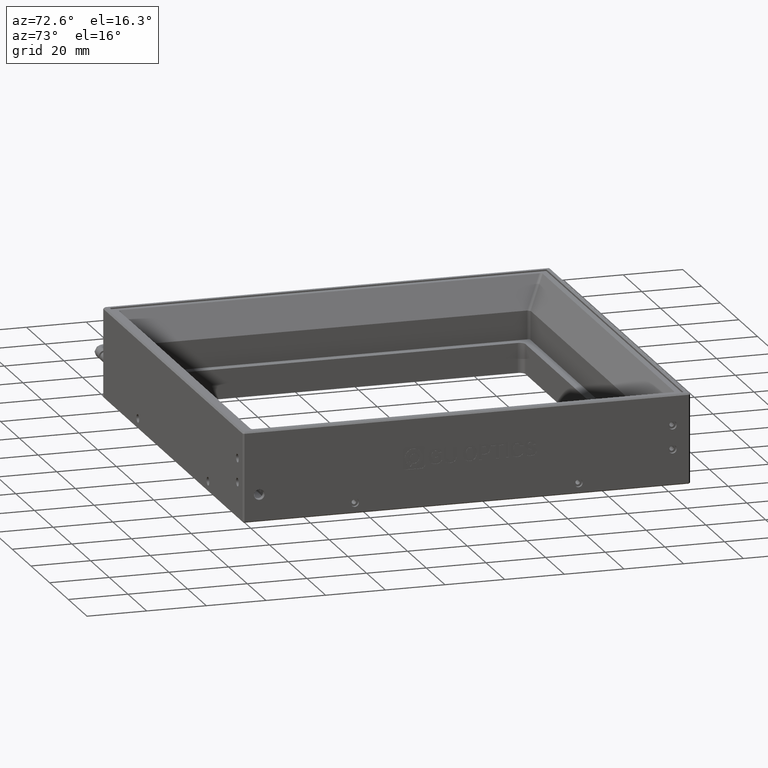
[diagram: clean part render]
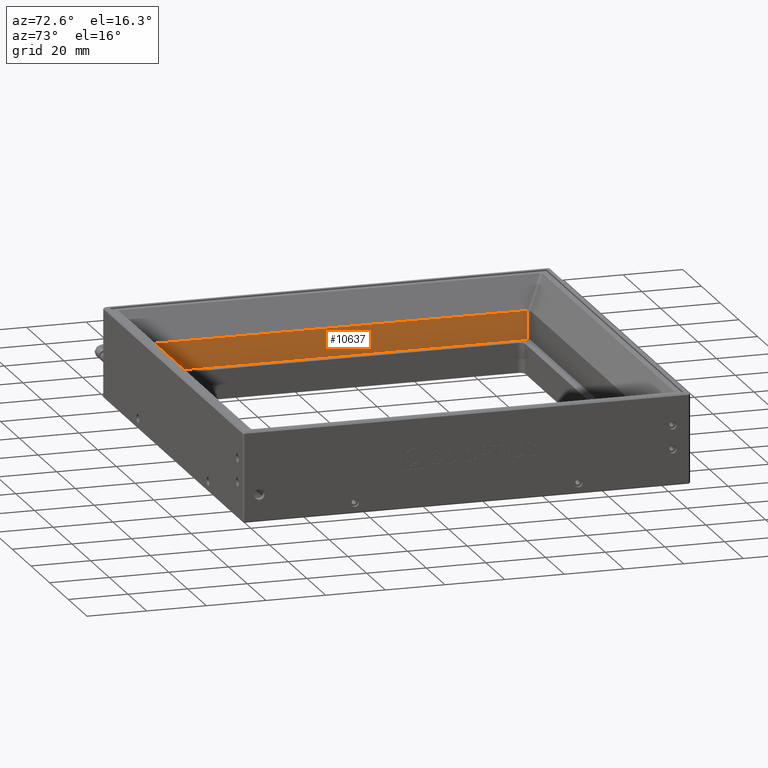
[diagram: same view with one face highlighted and labeled with its STEP entity id]
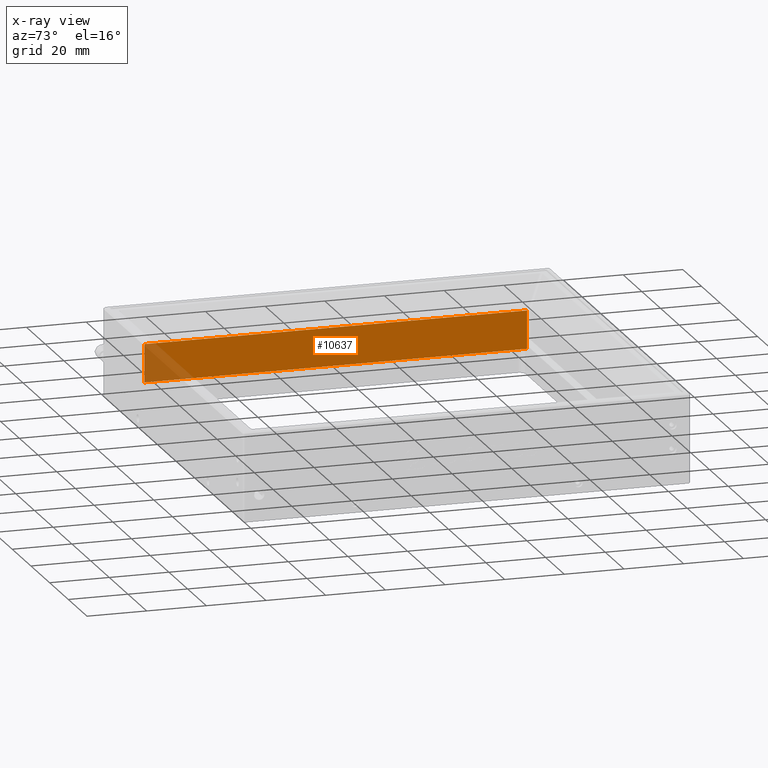
[diagram: x-ray of the same camera — body ghosted, the highlighted face saturated]
A machine part, auxiliary view. The second image highlights one B-rep face of the part: STEP entity #10637.
The next image is the same camera in x-ray: the body ghosted, the highlighted face saturated — about 8% of this face is hidden behind the body in this view.
In plain terms, the highlighted planar face has unit normal (1, -0, 0).
Its self-contained STEP definition (entity closure, byte-faithful):
#570 = CARTESIAN_POINT ( 'NONE',  ( -74.93175061932289800, 74.84938067712634800, 1.800000000000058400 ) ) ;
#1476 = VERTEX_POINT ( 'NONE', #10632 ) ;
#1791 = VECTOR ( 'NONE', #8589, 1000.000000000000000 ) ;
#1907 = CARTESIAN_POINT ( 'NONE',  ( -74.93175061932289800, -53.35061932287364100, 14.58090023534353500 ) ) ;
#2801 = EDGE_CURVE ( 'NONE', #19156, #21203, #20741, .T. ) ;
#3285 = DIRECTION ( 'NONE',  ( -6.938351866336616100E-019, -6.487865800153258500E-016, 1.000000000000000000 ) ) ;
#3979 = ORIENTED_EDGE ( 'NONE', *, *, #14078, .T. ) ;
#4575 = CARTESIAN_POINT ( 'NONE',  ( -74.93175061932289800, 74.84938067712634800, 1.800000000000058400 ) ) ;
#5537 = EDGE_CURVE ( 'NONE', #18433, #21203, #21202, .T. ) ;
#6042 = DIRECTION ( 'NONE',  ( -2.680289528439754100E-017, -1.000000000000000000, -6.487865800153258500E-016 ) ) ;
#6069 = DIRECTION ( 'NONE',  ( 1.000000000000000000, -2.680289528439754100E-017, 6.938351866336442800E-019 ) ) ;
#6152 = CARTESIAN_POINT ( 'NONE',  ( -74.93175061932289800, 75.84938067712634800, 1.800000000000058400 ) ) ;
#6725 = PLANE ( 'NONE',  #14372 ) ;
#6782 = LINE ( 'NONE', #6868, #1791 ) ;
#6868 = CARTESIAN_POINT ( 'NONE',  ( -74.93175061932291200, -53.35061932287362700, 1.799999999999975200 ) ) ;
#6966 = EDGE_CURVE ( 'NONE', #1476, #19156, #8124, .T. ) ;
#7335 = ORIENTED_EDGE ( 'NONE', *, *, #6966, .T. ) ;
#7813 = EDGE_LOOP ( 'NONE', ( #20744, #3979, #7335, #9208 ) ) ;
#8124 = LINE ( 'NONE', #18558, #12607 ) ;
#8589 = DIRECTION ( 'NONE',  ( 6.938351866336616100E-019, 6.487865800153258500E-016, -1.000000000000000000 ) ) ;
#9208 = ORIENTED_EDGE ( 'NONE', *, *, #2801, .T. ) ;
#10632 = CARTESIAN_POINT ( 'NONE',  ( -74.93175061932291200, -53.35061932287362700, 1.799999999999975200 ) ) ;
#10637 = ADVANCED_FACE ( 'NONE', ( #15892 ), #6725, .T. ) ;
#11502 = CARTESIAN_POINT ( 'NONE',  ( -74.93175061932289800, 74.84938067712634800, 14.58090023534356500 ) ) ;
#11836 = VECTOR ( 'NONE', #3285, 1000.000000000000000 ) ;
#12607 = VECTOR ( 'NONE', #20544, 1000.000000000000000 ) ;
#12717 = CARTESIAN_POINT ( 'NONE',  ( -74.93175061932288400, -60.25061932287368200, 14.58090023534351200 ) ) ;
#12919 = DIRECTION ( 'NONE',  ( -2.996798618502874000E-016, 1.000000000000000000, 5.218304167417634300E-016 ) ) ;
#14078 = EDGE_CURVE ( 'NONE', #18433, #1476, #6782, .T. ) ;
#14372 = AXIS2_PLACEMENT_3D ( 'NONE', #6152, #6069, #6042 ) ;
#15892 = FACE_OUTER_BOUND ( 'NONE', #7813, .T. ) ;
#16173 = VECTOR ( 'NONE', #12919, 1000.000000000000000 ) ;
#18433 = VERTEX_POINT ( 'NONE', #1907 ) ;
#18558 = CARTESIAN_POINT ( 'NONE',  ( -74.93175061932289800, 75.84938067712634800, 1.800000000000058400 ) ) ;
#19156 = VERTEX_POINT ( 'NONE', #570 ) ;
#20544 = DIRECTION ( 'NONE',  ( 2.680289528439754100E-017, 1.000000000000000000, 6.487865800153258500E-016 ) ) ;
#20741 = LINE ( 'NONE', #4575, #11836 ) ;
#20744 = ORIENTED_EDGE ( 'NONE', *, *, #5537, .F. ) ;
#21202 = LINE ( 'NONE', #12717, #16173 ) ;
#21203 = VERTEX_POINT ( 'NONE', #11502 ) ;